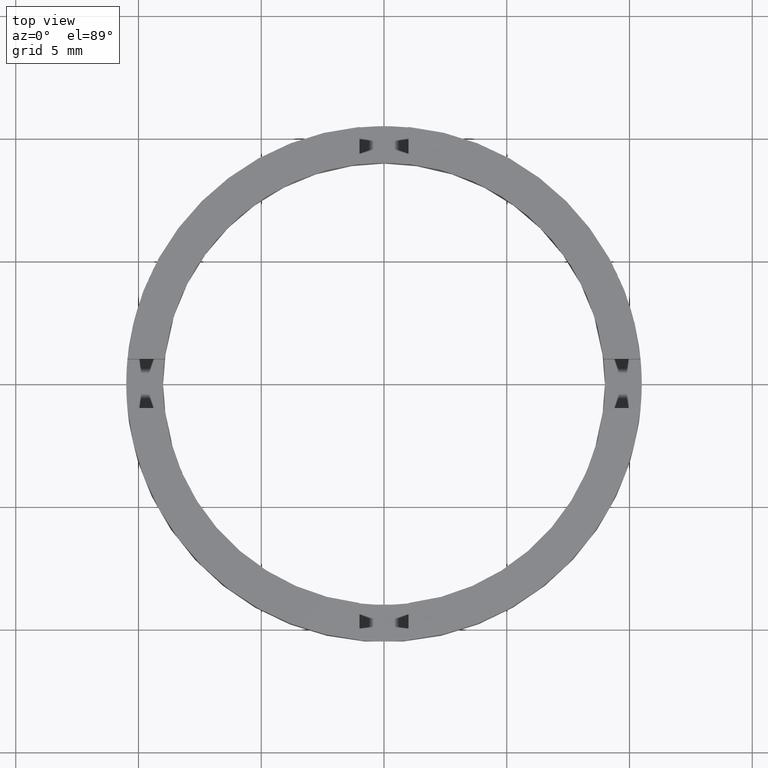
[diagram: clean part render]
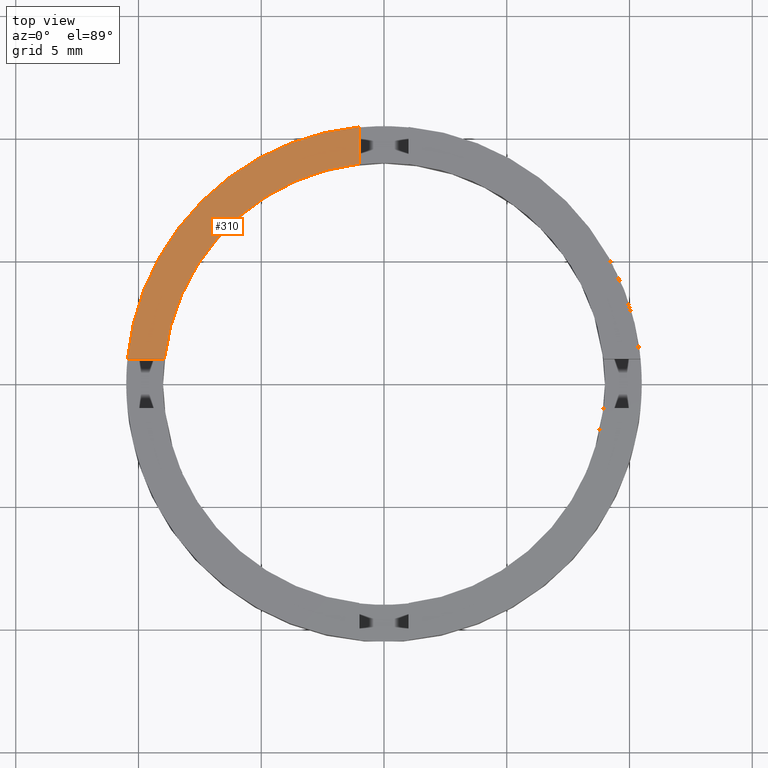
[diagram: same view with one face highlighted and labeled with its STEP entity id]
A machine part, top view. The second image highlights one B-rep face of the part: STEP entity #310.
In plain terms, the highlighted planar face has unit normal (0, 0, 1).
Its self-contained STEP definition (entity closure, byte-faithful):
#21 = DIRECTION ( 'NONE',  ( 0.000000000000000000, 0.000000000000000000, 1.000000000000000000 ) ) ;
#22 = AXIS2_PLACEMENT_3D ( 'NONE', #419, #639, #114 ) ;
#37 = CARTESIAN_POINT ( 'NONE',  ( 0.000000000000000000, 0.000000000000000000, 2.500000000000000000 ) ) ;
#62 = CARTESIAN_POINT ( 'NONE',  ( -1.000000000000037748, 3.500000000000003109, 2.500000000000000000 ) ) ;
#65 = CARTESIAN_POINT ( 'NONE',  ( -1.000000000000023981, 10.45227248018343502, 2.500000000000000000 ) ) ;
#77 = DIRECTION ( 'NONE',  ( 1.000000000000000000, 0.000000000000000000, -0.000000000000000000 ) ) ;
#104 = CIRCLE ( 'NONE', #561, 8.999999999999998224 ) ;
#106 = CARTESIAN_POINT ( 'NONE',  ( -1.000000000000026867, 8.944271909999150338, 2.500000000000000000 ) ) ;
#114 = DIRECTION ( 'NONE',  ( 1.000000000000000000, 0.000000000000000000, 0.000000000000000000 ) ) ;
#118 = ORIENTED_EDGE ( 'NONE', *, *, #490, .F. ) ;
#162 = EDGE_LOOP ( 'NONE', ( #379, #679, #118, #200 ) ) ;
#200 = ORIENTED_EDGE ( 'NONE', *, *, #255, .F. ) ;
#205 = CARTESIAN_POINT ( 'NONE',  ( -8.944271909999160997, 0.9999999999999744649, 2.500000000000000000 ) ) ;
#255 = EDGE_CURVE ( 'NONE', #634, #680, #104, .T. ) ;
#266 = VECTOR ( 'NONE', #779, 1000.000000000000000 ) ;
#285 = DIRECTION ( 'NONE',  ( 1.000000000000000000, 0.000000000000000000, 0.000000000000000000 ) ) ;
#295 = CARTESIAN_POINT ( 'NONE',  ( -3.500000000000002220, 0.9999999999999603650, 2.500000000000000000 ) ) ;
#310 = ADVANCED_FACE ( 'NONE', ( #551 ), #765, .T. ) ;
#367 = VERTEX_POINT ( 'NONE', #65 ) ;
#370 = DIRECTION ( 'NONE',  ( 0.000000000000000000, 0.000000000000000000, 1.000000000000000000 ) ) ;
#379 = ORIENTED_EDGE ( 'NONE', *, *, #557, .F. ) ;
#407 = VERTEX_POINT ( 'NONE', #544 ) ;
#419 = CARTESIAN_POINT ( 'NONE',  ( 0.000000000000000000, 0.000000000000000000, 2.500000000000000000 ) ) ;
#490 = EDGE_CURVE ( 'NONE', #680, #407, #752, .T. ) ;
#493 = LINE ( 'NONE', #62, #506 ) ;
#506 = VECTOR ( 'NONE', #717, 1000.000000000000000 ) ;
#519 = CIRCLE ( 'NONE', #22, 10.50000000000000178 ) ;
#537 = EDGE_CURVE ( 'NONE', #367, #407, #519, .T. ) ;
#543 = AXIS2_PLACEMENT_3D ( 'NONE', #37, #370, #77 ) ;
#544 = CARTESIAN_POINT ( 'NONE',  ( -10.45227248018344213, 0.9999999999999783507, 2.500000000000000000 ) ) ;
#551 = FACE_OUTER_BOUND ( 'NONE', #162, .T. ) ;
#557 = EDGE_CURVE ( 'NONE', #367, #634, #493, .T. ) ;
#561 = AXIS2_PLACEMENT_3D ( 'NONE', #583, #21, #285 ) ;
#583 = CARTESIAN_POINT ( 'NONE',  ( 0.000000000000000000, 0.000000000000000000, 2.500000000000000000 ) ) ;
#634 = VERTEX_POINT ( 'NONE', #106 ) ;
#639 = DIRECTION ( 'NONE',  ( 0.000000000000000000, 0.000000000000000000, 1.000000000000000000 ) ) ;
#679 = ORIENTED_EDGE ( 'NONE', *, *, #537, .T. ) ;
#680 = VERTEX_POINT ( 'NONE', #205 ) ;
#717 = DIRECTION ( 'NONE',  ( -1.920586705545751050E-15, -1.000000000000000000, -0.000000000000000000 ) ) ;
#752 = LINE ( 'NONE', #295, #266 ) ;
#765 = PLANE ( 'NONE',  #543 ) ;
#779 = DIRECTION ( 'NONE',  ( -1.000000000000000000, 2.571108009036985868E-15, 0.000000000000000000 ) ) ;